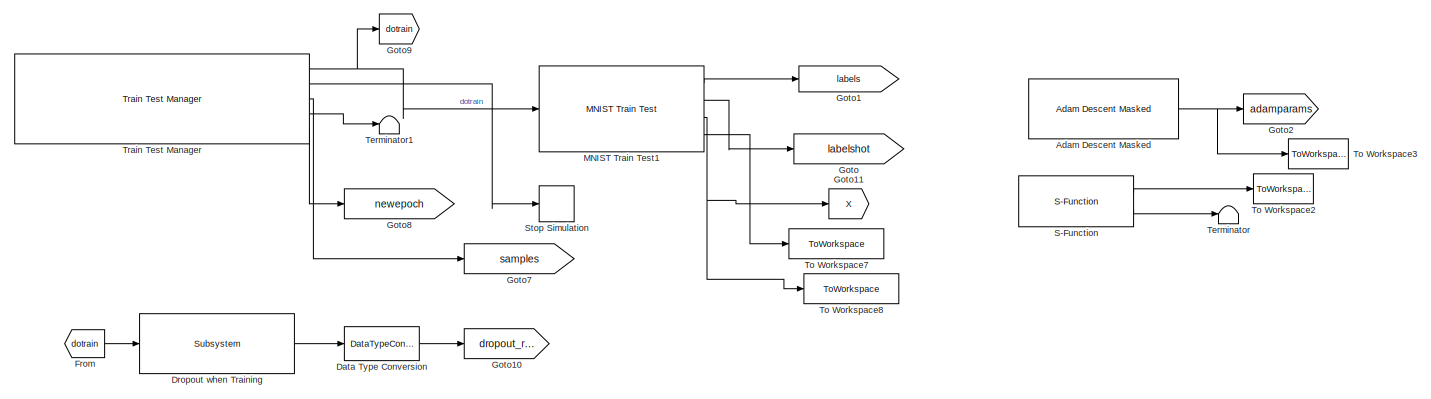
[diagram: root canvas - part 1/4, top center region]
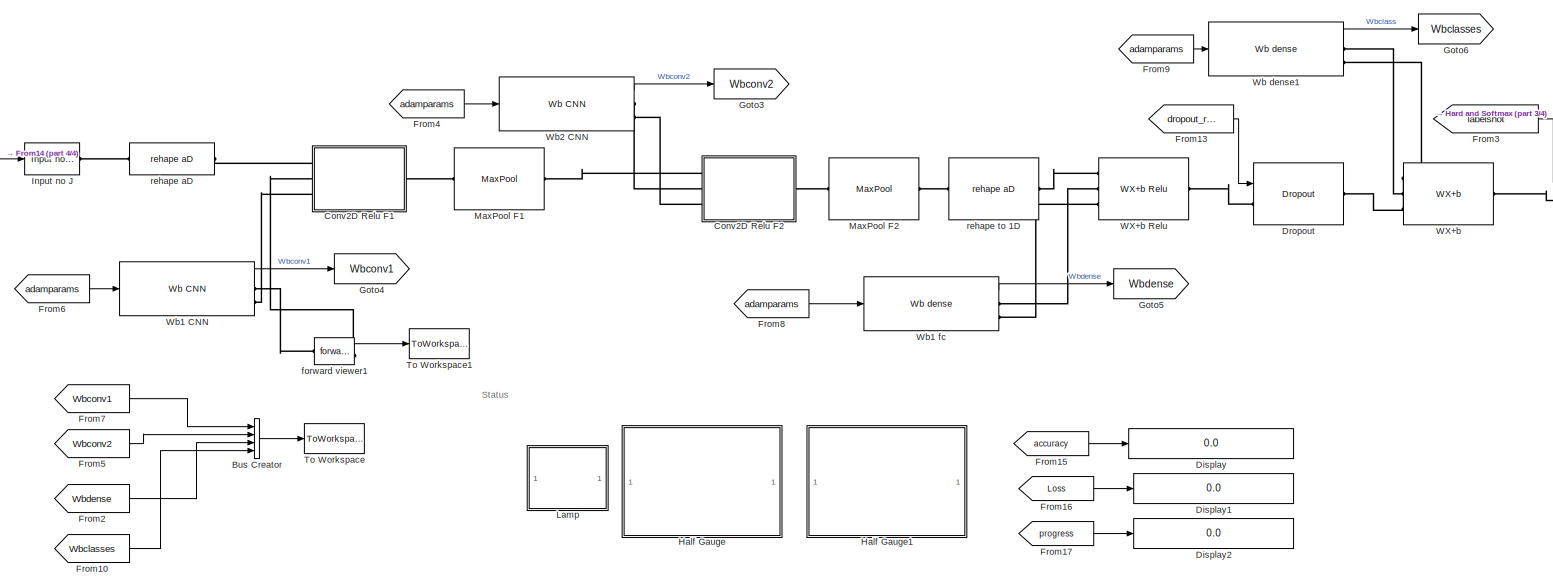
[diagram: root canvas - part 2/4, bottom center region]
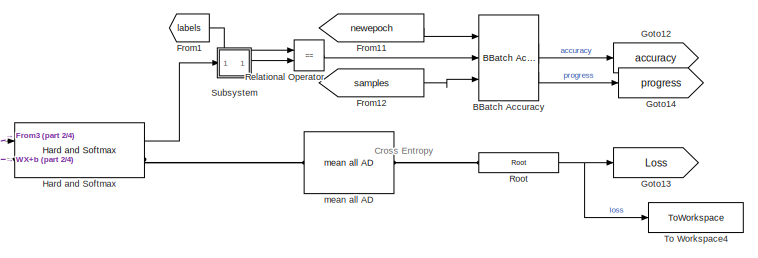
[diagram: root canvas - part 3/4, middle right region]
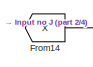
[diagram: root canvas - part 4/4, middle left region]
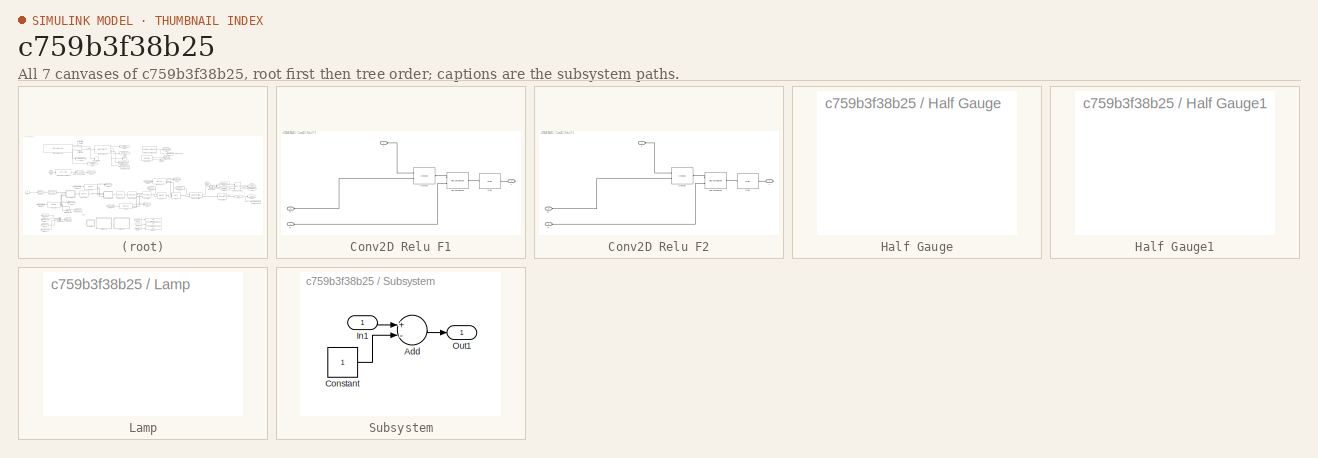
[diagram: thumbnail index - all 7 canvases of the model, root first then tree order]
MODEL slx_c759b3f38b25
KIND model
CONFIG AbsTol = auto
CONFIG EnableMultiTasking = off
CONFIG FixedStep = 1
CONFIG MaxStep = auto
CONFIG MinStep = auto
CONFIG RelTol = 1e-3
CONFIG SampleTimeConstraint = Unconstrained
CONFIG Solver = FixedStepDiscrete
CONFIG SolverName = FixedStepDiscrete
CONFIG StartTime = 0.0
CONFIG StopTime = Inf
WORKSPACE source: MATLAB code (in-file)
WORKSPACE filtersize1 = 5
WORKSPACE filtersize2 = 5
WORKSPACE features1 = 16
WORKSPACE features2 = 16
WORKSPACE densesize = 64
WORKSPACE classes = 10
WORKSPACE batchsize = 64
BLOCK [Reference] Adam Descent Masked  REF=ad_blocks/Adam Descent Masked  (lib defined in slx_3af8d3de87d3)
  Ports = [0, 1]
  SourceBlock = ad_blocks/Adam Descent Masked
BLOCK [Reference] BBatch Accuracy  REF=ad_blocks/BBatch Accuracy  (lib defined in slx_3af8d3de87d3)
  Ports = [3, 2]
  SourceBlock = ad_blocks/BBatch Accuracy
  SourceType = SubSystem
BLOCK [BusCreator] Bus Creator
  DisplayOption = bar
  InheritFromInputs = on
  Inputs = 4
  Ports = [4, 1]
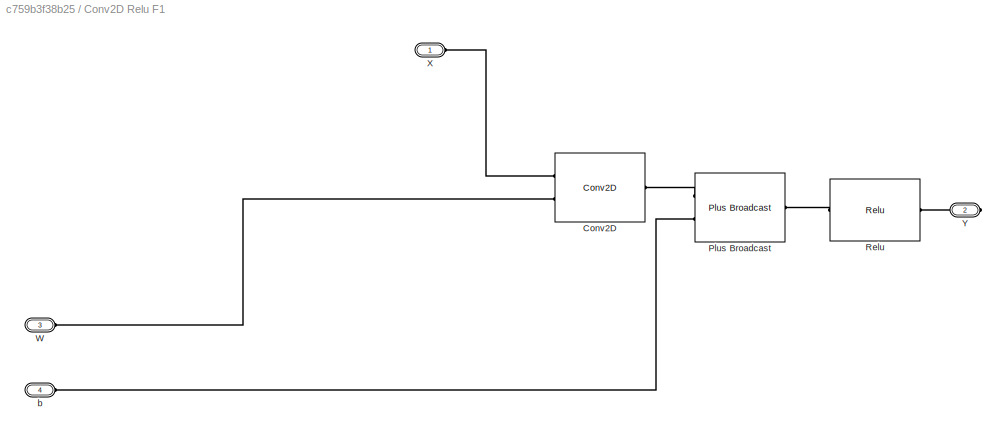
BLOCK [SubSystem] Conv2D Relu F1
  Ports = [0, 0, 0, 0, 0, 3, 1]
  RequestExecContextInheritance = off
  Variant = off
BLOCK [Reference] Conv2D Relu F1/Conv2D  REF=ad_blocks/Conv2D  (lib defined in slx_3af8d3de87d3)
  Ports = [0, 0, 0, 0, 0, 2, 1]
  SourceBlock = ad_blocks/Conv2D
BLOCK [Reference] Conv2D Relu F1/Plus Broadcast  REF=ad_blocks/Plus Broadcast  (lib defined in slx_3af8d3de87d3)
  Ports = [0, 0, 0, 0, 0, 2, 1]
  SourceBlock = ad_blocks/Plus Broadcast
  SourceType = SubSystem
BLOCK [Reference] Conv2D Relu F1/Relu  REF=ad_blocks/Relu  (lib defined in slx_3af8d3de87d3)
  Ports = [0, 0, 0, 0, 0, 1, 1]
  SourceBlock = ad_blocks/Relu
  SourceType = SubSystem
BLOCK [PMIOPort] Conv2D Relu F1/W
  Port = 3
  Side = Left
BLOCK [PMIOPort] Conv2D Relu F1/X
  Port = 1
  Side = Left
BLOCK [PMIOPort] Conv2D Relu F1/Y
  Port = 2
  Side = Right
BLOCK [PMIOPort] Conv2D Relu F1/b
  Port = 4
  Side = Left
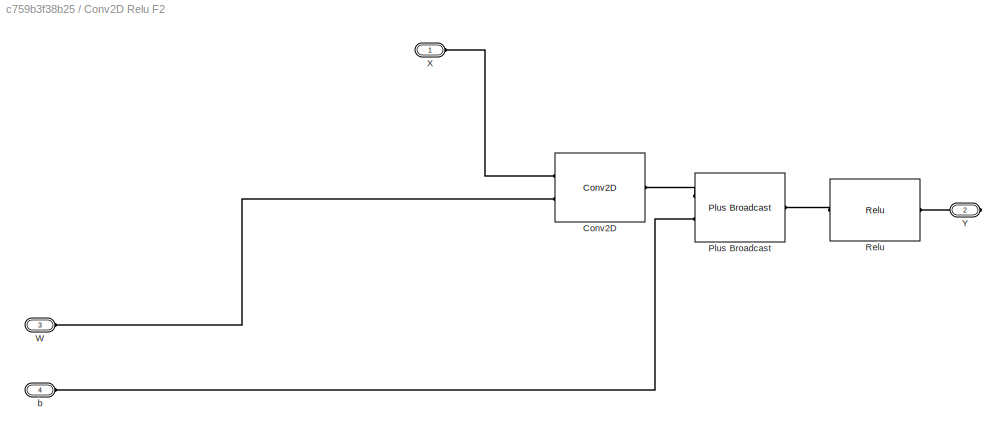
BLOCK [SubSystem] Conv2D Relu F2
  Ports = [0, 0, 0, 0, 0, 3, 1]
  RequestExecContextInheritance = off
  Variant = off
BLOCK [Reference] Conv2D Relu F2/Conv2D  REF=ad_blocks/Conv2D  (lib defined in slx_3af8d3de87d3)
  Ports = [0, 0, 0, 0, 0, 2, 1]
  SourceBlock = ad_blocks/Conv2D
BLOCK [Reference] Conv2D Relu F2/Plus Broadcast  REF=ad_blocks/Plus Broadcast  (lib defined in slx_3af8d3de87d3)
  Ports = [0, 0, 0, 0, 0, 2, 1]
  SourceBlock = ad_blocks/Plus Broadcast
  SourceType = SubSystem
BLOCK [Reference] Conv2D Relu F2/Relu  REF=ad_blocks/Relu  (lib defined in slx_3af8d3de87d3)
  Ports = [0, 0, 0, 0, 0, 1, 1]
  SourceBlock = ad_blocks/Relu
  SourceType = SubSystem
BLOCK [PMIOPort] Conv2D Relu F2/W
  Port = 3
  Side = Left
BLOCK [PMIOPort] Conv2D Relu F2/X
  Port = 1
  Side = Left
BLOCK [PMIOPort] Conv2D Relu F2/Y
  Port = 2
  Side = Right
BLOCK [PMIOPort] Conv2D Relu F2/b
  Port = 4
  Side = Left
BLOCK [DataTypeConversion] Data Type Conversion
  OutDataTypeStr = single
  RndMeth = Floor
  SaturateOnIntegerOverflow = off
BLOCK [Display] Display
  Decimation = 1
  Ports = [1]
BLOCK [Display] Display1
  Decimation = 1
  Ports = [1]
BLOCK [Display] Display2
  Decimation = 1
  Ports = [1]
BLOCK [Reference] Dropout  REF=ad_blocks/Dropout  (lib defined in slx_3af8d3de87d3)
  Ports = [1, 0, 0, 0, 0, 1, 1]
  SourceBlock = ad_blocks/Dropout
  SourceType = SubSystem
BLOCK [Reference] Dropout when Training  REF=ad_blocks/Subsystem  (lib defined in slx_3af8d3de87d3)
  Ports = [1, 1]
  SourceBlock = ad_blocks/Subsystem
BLOCK [From] From
  GotoTag = dotrain
  TagVisibility = global
BLOCK [From] From1
  GotoTag = labels
BLOCK [From] From10
  GotoTag = Wbclasses
BLOCK [From] From11
  GotoTag = newepoch
BLOCK [From] From12
  GotoTag = samples
BLOCK [From] From13
  GotoTag = dropout_rate
BLOCK [From] From14
  GotoTag = X
BLOCK [From] From15
  GotoTag = accuracy
BLOCK [From] From16
  GotoTag = Loss
BLOCK [From] From17
  GotoTag = progress
BLOCK [From] From2
  GotoTag = Wbdense
BLOCK [From] From3
  GotoTag = labelshot
BLOCK [From] From4
  GotoTag = adamparams
BLOCK [From] From5
  GotoTag = Wbconv2
BLOCK [From] From6
  GotoTag = adamparams
BLOCK [From] From7
  GotoTag = Wbconv1
BLOCK [From] From8
  GotoTag = adamparams
BLOCK [From] From9
  GotoTag = adamparams
BLOCK [Goto] Goto
  GotoTag = labelshot
BLOCK [Goto] Goto1
  GotoTag = labels
BLOCK [Goto] Goto10
  GotoTag = dropout_rate
BLOCK [Goto] Goto11
  GotoTag = X
BLOCK [Goto] Goto12
  GotoTag = accuracy
BLOCK [Goto] Goto13
  GotoTag = Loss
BLOCK [Goto] Goto14
  GotoTag = progress
BLOCK [Goto] Goto2
  GotoTag = adamparams
BLOCK [Goto] Goto3
  GotoTag = Wbconv2
BLOCK [Goto] Goto4
  GotoTag = Wbconv1
BLOCK [Goto] Goto5
  GotoTag = Wbdense
BLOCK [Goto] Goto6
  GotoTag = Wbclasses
BLOCK [Goto] Goto7
  GotoTag = samples
BLOCK [Goto] Goto8
  GotoTag = newepoch
BLOCK [Goto] Goto9
  GotoTag = dotrain
  TagVisibility = global
BLOCK [SubSystem] Half Gauge
  DialogController = hmiCreateDDGDialog
  IsWebBlock = on
  MaskHideContents = on
  Ports = []
  RequestExecContextInheritance = off
  Variant = off
BLOCK [SubSystem] Half Gauge1
  DialogController = hmiCreateDDGDialog
  IsWebBlock = on
  MaskHideContents = on
  Ports = []
  RequestExecContextInheritance = off
  Variant = off
BLOCK [Reference] Hard and Softmax  REF=ad_blocks/Hard and Softmax  (lib defined in slx_3af8d3de87d3)
  Ports = [1, 1, 0, 0, 0, 1, 1]
  SourceBlock = ad_blocks/Hard and Softmax
  SourceType = SubSystem
BLOCK [Reference] Input no J  REF=ad_blocks/Input no J  (lib defined in slx_3af8d3de87d3)
  Ports = [1, 0, 0, 0, 0, 0, 1]
  SourceBlock = ad_blocks/Input no J
BLOCK [SubSystem] Lamp
  DialogController = hmiCreateDDGDialog
  IsWebBlock = on
  MaskHideContents = on
  Ports = []
  RequestExecContextInheritance = off
  Variant = off
BLOCK [Reference] MNIST Train Test1  REF=ad_blocks/MNIST Train Test  (lib defined in slx_3af8d3de87d3)
  Ports = [1, 4]
  SourceBlock = ad_blocks/MNIST Train Test
BLOCK [Reference] MaxPool F1  REF=ad_blocks/MaxPool  (lib defined in slx_3af8d3de87d3)
  Ports = [0, 0, 0, 0, 0, 1, 1]
  SourceBlock = ad_blocks/MaxPool
BLOCK [Reference] MaxPool F2  REF=ad_blocks/MaxPool  (lib defined in slx_3af8d3de87d3)
  Ports = [0, 0, 0, 0, 0, 1, 1]
  SourceBlock = ad_blocks/MaxPool
BLOCK [RelationalOperator] Relational Operator
  InputSameDT = off
  Operator = ==
  OutDataTypeStr = boolean
  Ports = [2, 1]
  RndMeth = Simplest
BLOCK [Reference] Root  REF=ad_blocks/Root  (lib defined in slx_3af8d3de87d3)
  Description = Top level AD block: gets the incoming value, pushes the scalar 1 gradient
  Ports = [0, 1, 0, 0, 0, 1]
  SourceBlock = ad_blocks/Root
BLOCK [S-Function] S-Function
  EnableBusSupport = off
  FunctionName = SyncTime
  Parameters = dt
  Ports = [0, 2]
  Priority = 1024
  SFcnIsStateOwnerBlock = off
  SFunctionDeploymentMode = off
BLOCK [Stop] Stop Simulation
BLOCK [SubSystem] Subsystem
  Ports = [1, 1]
  RequestExecContextInheritance = off
  Variant = off
BLOCK [Sum] Subsystem/Add
  InputSameDT = off
  Inputs = +-
  OutDataTypeStr = Inherit: Inherit via internal rule
  Ports = [2, 1]
  SaturateOnIntegerOverflow = off
BLOCK [Constant] Subsystem/Constant
  OutDataTypeStr = Inherit: Inherit via back propagation
BLOCK [Inport] Subsystem/In1
  IconDisplay = Port number
BLOCK [Outport] Subsystem/Out1
  IconDisplay = Port number
BLOCK [Terminator] Terminator
BLOCK [Terminator] Terminator1
BLOCK [ToWorkspace] To Workspace
  FixptAsFi = on
  MaxDataPoints = 3
  Ports = [1]
  SampleTime = -1
  Save2DSignal = 3-D array (concatenate along third dimension)
  SaveFormat = Timeseries
  VariableName = Pout
BLOCK [ToWorkspace] To Workspace1
  FixptAsFi = on
  MaxDataPoints = 3
  Ports = [1]
  SampleTime = -1
  Save2DSignal = 3-D array (concatenate along third dimension)
  SaveFormat = Timeseries
  VariableName = J1
BLOCK [ToWorkspace] To Workspace2
  FixptAsFi = on
  MaxDataPoints = inf
  Ports = [1]
  SampleTime = 1
  Save2DSignal = 3-D array (concatenate along third dimension)
  SaveFormat = Timeseries
  VariableName = realtout
BLOCK [ToWorkspace] To Workspace3
  FixptAsFi = on
  MaxDataPoints = 2
  Ports = [1]
  SampleTime = 1
  Save2DSignal = 3-D array (concatenate along third dimension)
  SaveFormat = Timeseries
  VariableName = adamparams
BLOCK [ToWorkspace] To Workspace4
  FixptAsFi = on
  MaxDataPoints = 3
  Ports = [1]
  SampleTime = -1
  Save2DSignal = 3-D array (concatenate along third dimension)
  SaveFormat = Timeseries
  VariableName = loss
BLOCK [ToWorkspace] To Workspace7
  FixptAsFi = on
  MaxDataPoints = 1
  Ports = [1]
  SampleTime = -1
  Save2DSignal = 3-D array (concatenate along third dimension)
  SaveFormat = Timeseries
  VariableName = sim_indices
BLOCK [ToWorkspace] To Workspace8
  FixptAsFi = on
  MaxDataPoints = 1
  Ports = [1]
  SampleTime = -1
  Save2DSignal = 3-D array (concatenate along third dimension)
  SaveFormat = Timeseries
  VariableName = sim_x
BLOCK [Reference] Train Test Manager  REF=ad_blocks/Train Test Manager  (lib defined in slx_3af8d3de87d3)
  Ports = [0, 5]
  SourceBlock = ad_blocks/Train Test Manager
  SourceType = train_test_mgr
BLOCK [Reference] WX+b   REF=ad_blocks/WX+b   (lib defined in slx_3af8d3de87d3)
  Ports = [0, 0, 0, 0, 0, 3, 1]
  SourceBlock = ad_blocks/WX+b
  SourceType = SubSystem
BLOCK [Reference] WX+b Relu  REF=ad_blocks/WX+b Relu  (lib defined in slx_3af8d3de87d3)
  Ports = [0, 0, 0, 0, 0, 3, 1]
  SourceBlock = ad_blocks/WX+b Relu
  SourceType = SubSystem
BLOCK [Reference] Wb dense1  REF=ad_blocks/Wb dense  (lib defined in slx_3af8d3de87d3)
  Ports = [1, 1, 0, 0, 0, 0, 2]
  SourceBlock = ad_blocks/Wb dense
BLOCK [Reference] Wb1 CNN  REF=ad_blocks/Wb CNN  (lib defined in slx_3af8d3de87d3)
  Ports = [1, 1, 0, 0, 0, 0, 2]
  SourceBlock = ad_blocks/Wb CNN
BLOCK [Reference] Wb1 fc  REF=ad_blocks/Wb dense  (lib defined in slx_3af8d3de87d3)
  Ports = [1, 1, 0, 0, 0, 0, 2]
  SourceBlock = ad_blocks/Wb dense
BLOCK [Reference] Wb2 CNN  REF=ad_blocks/Wb CNN  (lib defined in slx_3af8d3de87d3)
  Ports = [1, 1, 0, 0, 0, 0, 2]
  SourceBlock = ad_blocks/Wb CNN
BLOCK [Reference] forward viewer1  REF=ad_blocks/forward viewer1  (lib defined in slx_3af8d3de87d3)
  Ports = [0, 1, 0, 0, 0, 1, 1]
  SourceBlock = ad_blocks/forward viewer1
BLOCK [Reference] mean all AD  REF=ad_blocks/mean all AD  (lib defined in slx_3af8d3de87d3)
  Ports = [0, 0, 0, 0, 0, 1, 1]
  SourceBlock = ad_blocks/mean all AD
  SourceType = SubSystem
BLOCK [Reference] rehape aD  REF=ad_blocks/rehape aD  (lib defined in slx_3af8d3de87d3)
  Ports = [0, 0, 0, 0, 0, 1, 1]
  SourceBlock = ad_blocks/rehape aD
BLOCK [Reference] rehape to 1D  REF=ad_blocks/rehape aD  (lib defined in slx_3af8d3de87d3)
  Ports = [0, 0, 0, 0, 0, 1, 1]
  SourceBlock = ad_blocks/rehape aD
ANNOTATION (root): Cross Entropy
ANNOTATION (root): Status
NET Adam Descent Masked:1 -> Goto2:1, To Workspace3:1
LINE BBatch Accuracy:1 -> Goto12:1
LINE BBatch Accuracy:2 -> Goto14:1
LINE Bus Creator:1 -> To Workspace:1
LINE Data Type Conversion:1 -> Goto10:1
LINE Dropout when Training:1 -> Data Type Conversion:1
LINE From10:1 -> Bus Creator:4
LINE From11:1 -> BBatch Accuracy:1
LINE From12:1 -> BBatch Accuracy:3
LINE From13:1 -> Dropout:1
LINE From14:1 -> Input no J:1
LINE From15:1 -> Display:1
LINE From16:1 -> Display1:1
LINE From17:1 -> Display2:1
LINE From1:1 -> Relational Operator:1
LINE From2:1 -> Bus Creator:3
LINE From3:1 -> Hard and Softmax:1
LINE From4:1 -> Wb2 CNN:1
LINE From5:1 -> Bus Creator:2
LINE From6:1 -> Wb1 CNN:1
LINE From7:1 -> Bus Creator:1
LINE From8:1 -> Wb1 fc:1
LINE From9:1 -> Wb dense1:1
LINE From:1 -> Dropout when Training:1
LINE Hard and Softmax:1 -> Subsystem:1
LINE MNIST Train Test1:1 -> Goto1:1
LINE MNIST Train Test1:2 -> Goto:1
NET MNIST Train Test1:3 -> Goto11:1, To Workspace8:1
LINE MNIST Train Test1:4 -> To Workspace7:1
LINE Relational Operator:1 -> BBatch Accuracy:2
NET Root:1 -> Goto13:1, To Workspace4:1
LINE S-Function:1 -> To Workspace2:1
LINE S-Function:2 -> Terminator:1
LINE Subsystem/Add:1 -> Subsystem/Out1:1
LINE Subsystem/Constant:1 -> Subsystem/Add:2
LINE Subsystem/In1:1 -> Subsystem/Add:1
LINE Subsystem:1 -> Relational Operator:2
NET Train Test Manager:1 -> Goto9:1, MNIST Train Test1:1
LINE Train Test Manager:2 -> Stop Simulation:1
LINE Train Test Manager:3 -> Goto7:1
LINE Train Test Manager:4 -> Terminator1:1
LINE Train Test Manager:5 -> Goto8:1
LINE Wb dense1:1 -> Goto6:1
LINE Wb1 CNN:1 -> Goto4:1
LINE Wb1 fc:1 -> Goto5:1
LINE Wb2 CNN:1 -> Goto3:1
LINE forward viewer1:1 -> To Workspace1:1
PLINE Conv2D Relu F1/Conv2D:LConn1 -- Conv2D Relu F1/X:RConn1
PLINE Conv2D Relu F1/Conv2D:LConn2 -- Conv2D Relu F1/W:RConn1
PLINE Conv2D Relu F1/Conv2D:RConn1 -- Conv2D Relu F1/Plus Broadcast:LConn1
PLINE Conv2D Relu F1/Plus Broadcast:LConn2 -- Conv2D Relu F1/b:RConn1
PLINE Conv2D Relu F1/Plus Broadcast:RConn1 -- Conv2D Relu F1/Relu:LConn1
PLINE Conv2D Relu F1/Relu:RConn1 -- Conv2D Relu F1/Y:RConn1
PLINE Conv2D Relu F1:LConn1 -- rehape aD:RConn1
PLINE Conv2D Relu F1:LConn2 -- forward viewer1:RConn1
PLINE Conv2D Relu F1:LConn3 -- Wb1 CNN:RConn2
PLINE Conv2D Relu F1:RConn1 -- MaxPool F1:LConn1
PLINE Conv2D Relu F2/Conv2D:LConn1 -- Conv2D Relu F2/X:RConn1
PLINE Conv2D Relu F2/Conv2D:LConn2 -- Conv2D Relu F2/W:RConn1
PLINE Conv2D Relu F2/Conv2D:RConn1 -- Conv2D Relu F2/Plus Broadcast:LConn1
PLINE Conv2D Relu F2/Plus Broadcast:LConn2 -- Conv2D Relu F2/b:RConn1
PLINE Conv2D Relu F2/Plus Broadcast:RConn1 -- Conv2D Relu F2/Relu:LConn1
PLINE Conv2D Relu F2/Relu:RConn1 -- Conv2D Relu F2/Y:RConn1
PLINE Conv2D Relu F2:LConn1 -- MaxPool F1:RConn1
PLINE Conv2D Relu F2:LConn2 -- Wb2 CNN:RConn1
PLINE Conv2D Relu F2:LConn3 -- Wb2 CNN:RConn2
PLINE Conv2D Relu F2:RConn1 -- MaxPool F2:LConn1
PLINE Dropout:LConn1 -- WX+b Relu:RConn1
PLINE Dropout:RConn1 -- WX+b :LConn1
PLINE Hard and Softmax:LConn1 -- WX+b :RConn1
PLINE Hard and Softmax:RConn1 -- mean all AD:LConn1
PLINE Input no J:RConn1 -- rehape aD:LConn1
PLINE MaxPool F2:RConn1 -- rehape to 1D:LConn1
PLINE Root:LConn1 -- mean all AD:RConn1
PLINE WX+b :LConn2 -- Wb dense1:RConn1
PLINE WX+b :LConn3 -- Wb dense1:RConn2
PLINE WX+b Relu:LConn1 -- rehape to 1D:RConn1
PLINE WX+b Relu:LConn2 -- Wb1 fc:RConn1
PLINE WX+b Relu:LConn3 -- Wb1 fc:RConn2
PLINE Wb1 CNN:RConn1 -- forward viewer1:LConn1
note: NET lines group one-source signal fan-out (src -> all destinations, sorted); 1:1 wires keep LINE
